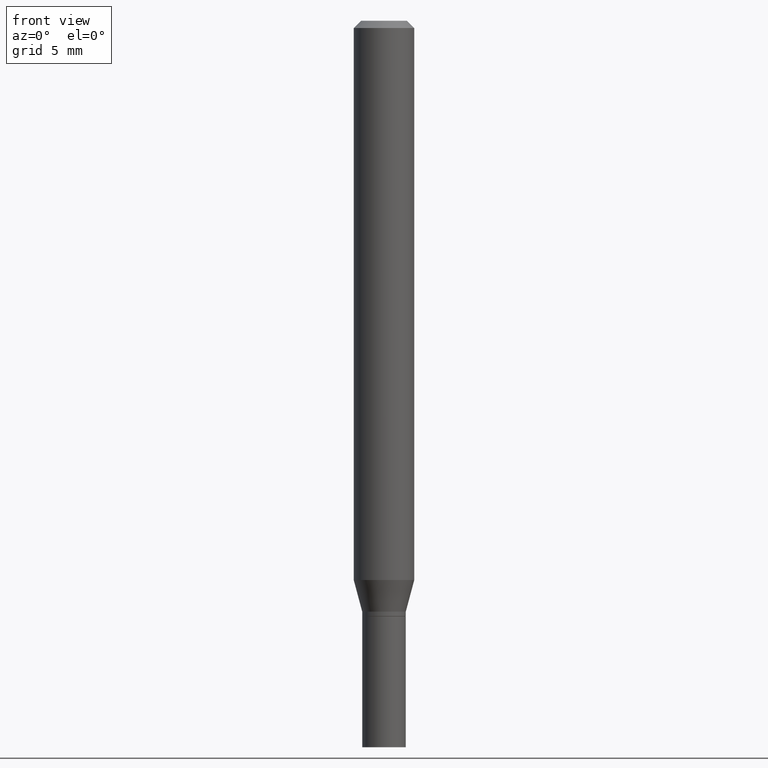
[diagram: clean part render]
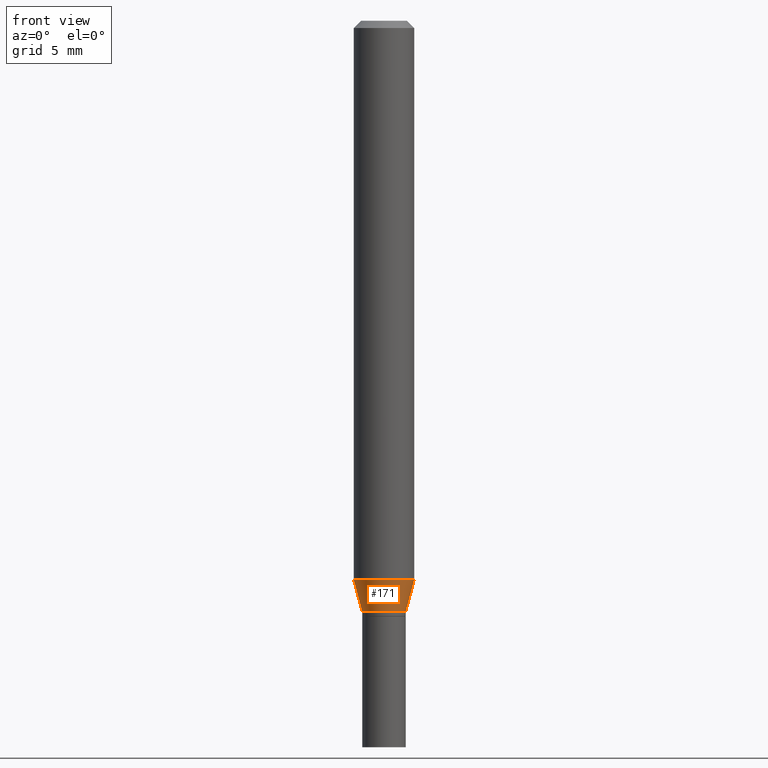
[diagram: same view with one face highlighted and labeled with its STEP entity id]
A machine part, front view. The second image highlights one B-rep face of the part: STEP entity #171.
In plain terms, the highlighted conical surface has half-angle 15 deg.
Its self-contained STEP definition (entity closure, byte-faithful):
#4 = AXIS2_PLACEMENT_3D ( 'NONE', #176, #289, #28 ) ;
#16 = VERTEX_POINT ( 'NONE', #163 ) ;
#18 = CIRCLE ( 'NONE', #345, 0.04500000000000019262 ) ;
#23 = ORIENTED_EDGE ( 'NONE', *, *, #169, .T. ) ;
#28 = DIRECTION ( 'NONE',  ( 1.000000000000000000, -6.982962677686259611E-15, 0.000000000000000000 ) ) ;
#65 = CARTESIAN_POINT ( 'NONE',  ( 0.04500000000000019262, -4.573840553884520788E-15, -1.220000000000000195 ) ) ;
#69 = DIRECTION ( 'NONE',  ( 0.2588190451025205174, 1.565188264969628476E-15, 0.9659258262890684232 ) ) ;
#77 = DIRECTION ( 'NONE',  ( -2.445468806185136597E-29, 3.491481338843145583E-15, 1.000000000000000000 ) ) ;
#103 = AXIS2_PLACEMENT_3D ( 'NONE', #292, #77, #104 ) ;
#104 = DIRECTION ( 'NONE',  ( 1.000000000000000000, -6.982962677686270655E-15, 0.000000000000000000 ) ) ;
#108 = CARTESIAN_POINT ( 'NONE',  ( 0.04500000000000019262, -4.573840553884520788E-15, -1.220000000000000195 ) ) ;
#127 = ORIENTED_EDGE ( 'NONE', *, *, #464, .F. ) ;
#147 = FACE_OUTER_BOUND ( 'NONE', #380, .T. ) ;
#154 = LINE ( 'NONE', #377, #410 ) ;
#160 = CIRCLE ( 'NONE', #103, 0.06250000000000000000 ) ;
#163 = CARTESIAN_POINT ( 'NONE',  ( -0.04500000000000019262, -3.763674637602973398E-15, -1.220000000000000195 ) ) ;
#166 = ORIENTED_EDGE ( 'NONE', *, *, #226, .T. ) ;
#169 = EDGE_CURVE ( 'NONE', #319, #454, #326, .T. ) ;
#171 = ADVANCED_FACE ( 'NONE', ( #147 ), #205, .T. ) ;
#176 = CARTESIAN_POINT ( 'NONE',  ( 2.983471943545866670E-29, -4.259607233388637524E-15, -1.220000000000000195 ) ) ;
#203 = VERTEX_POINT ( 'NONE', #257 ) ;
#205 = CONICAL_SURFACE ( 'NONE', #4, 0.04500000000000019262, 0.2617993877991491858 ) ;
#226 = EDGE_CURVE ( 'NONE', #16, #319, #18, .T. ) ;
#230 = VECTOR ( 'NONE', #69, 39.37007874015748143 ) ;
#255 = CARTESIAN_POINT ( 'NONE',  ( 2.983471943545866670E-29, -4.259607233388637524E-15, -1.220000000000000195 ) ) ;
#257 = CARTESIAN_POINT ( 'NONE',  ( -0.06250000000000000000, -3.587486272909356218E-15, -1.154689110867545443 ) ) ;
#276 = ORIENTED_EDGE ( 'NONE', *, *, #315, .F. ) ;
#289 = DIRECTION ( 'NONE',  ( -2.445468806185136597E-29, 3.491481338843145583E-15, 1.000000000000000000 ) ) ;
#292 = CARTESIAN_POINT ( 'NONE',  ( 2.823756201468233313E-29, -4.031575482759418834E-15, -1.154689110867545443 ) ) ;
#315 = EDGE_CURVE ( 'NONE', #203, #454, #160, .T. ) ;
#319 = VERTEX_POINT ( 'NONE', #65 ) ;
#325 = DIRECTION ( 'NONE',  ( -2.445468806185136597E-29, 3.491481338843145583E-15, 1.000000000000000000 ) ) ;
#326 = LINE ( 'NONE', #108, #230 ) ;
#333 = CARTESIAN_POINT ( 'NONE',  ( 0.06250000000000000000, -4.468010650114809714E-15, -1.154689110867545443 ) ) ;
#343 = DIRECTION ( 'NONE',  ( -0.2588190451025205174, 5.211531920934544731E-15, 0.9659258262890684232 ) ) ;
#345 = AXIS2_PLACEMENT_3D ( 'NONE', #255, #325, #394 ) ;
#377 = CARTESIAN_POINT ( 'NONE',  ( -0.04500000000000019262, -3.939863002296591368E-15, -1.220000000000000195 ) ) ;
#380 = EDGE_LOOP ( 'NONE', ( #127, #166, #23, #276 ) ) ;
#394 = DIRECTION ( 'NONE',  ( 1.000000000000000000, -6.982962677686259611E-15, 0.000000000000000000 ) ) ;
#410 = VECTOR ( 'NONE', #343, 39.37007874015748143 ) ;
#454 = VERTEX_POINT ( 'NONE', #333 ) ;
#464 = EDGE_CURVE ( 'NONE', #16, #203, #154, .T. ) ;